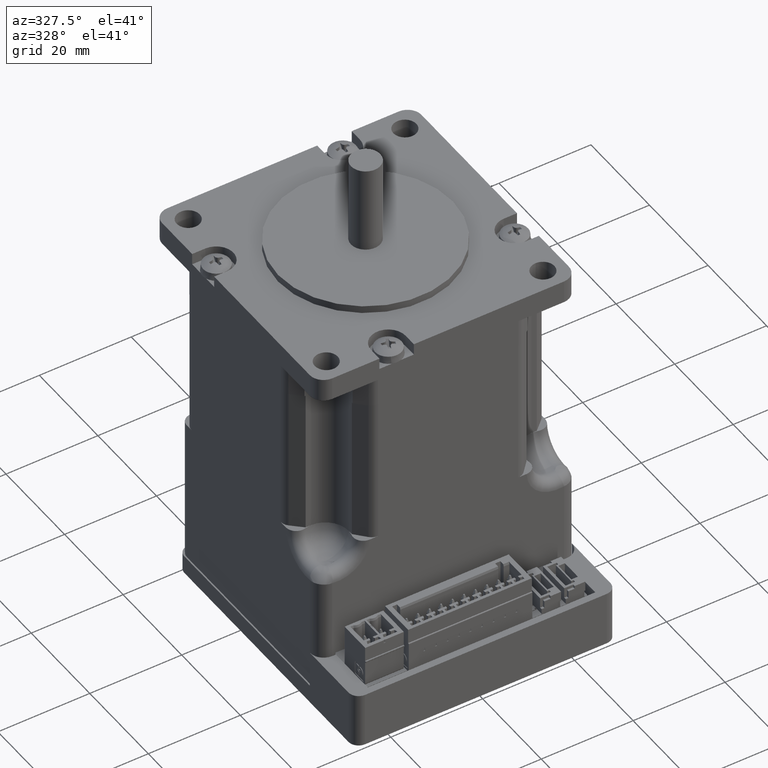
[diagram: clean part render]
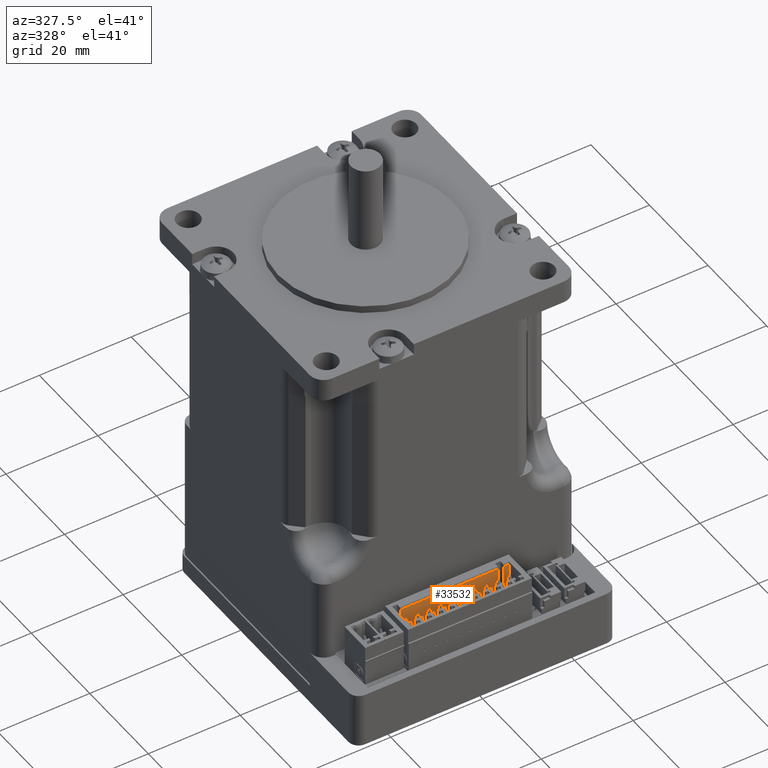
[diagram: same view with one face highlighted and labeled with its STEP entity id]
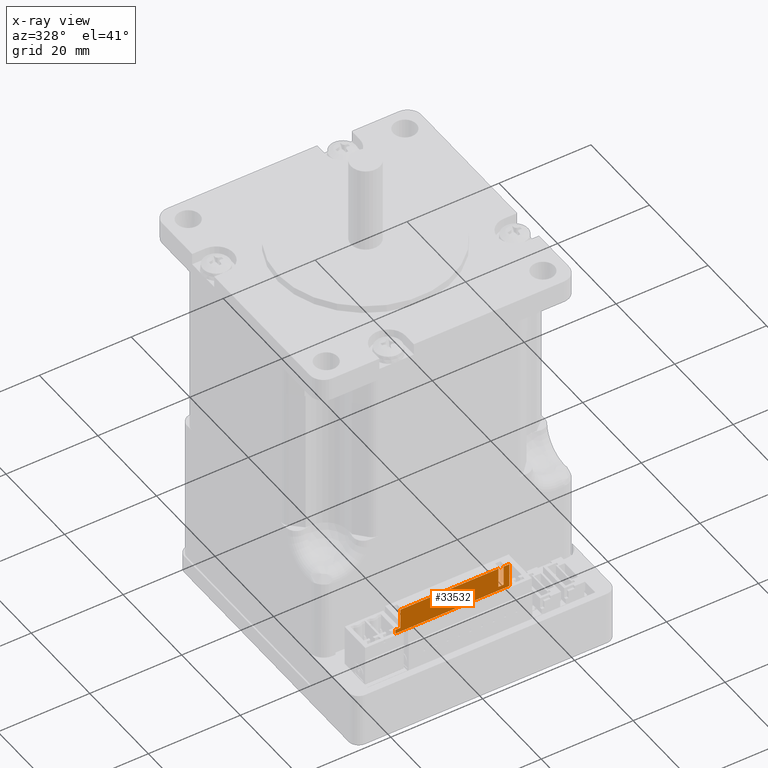
[diagram: x-ray of the same camera — body ghosted, the highlighted face saturated]
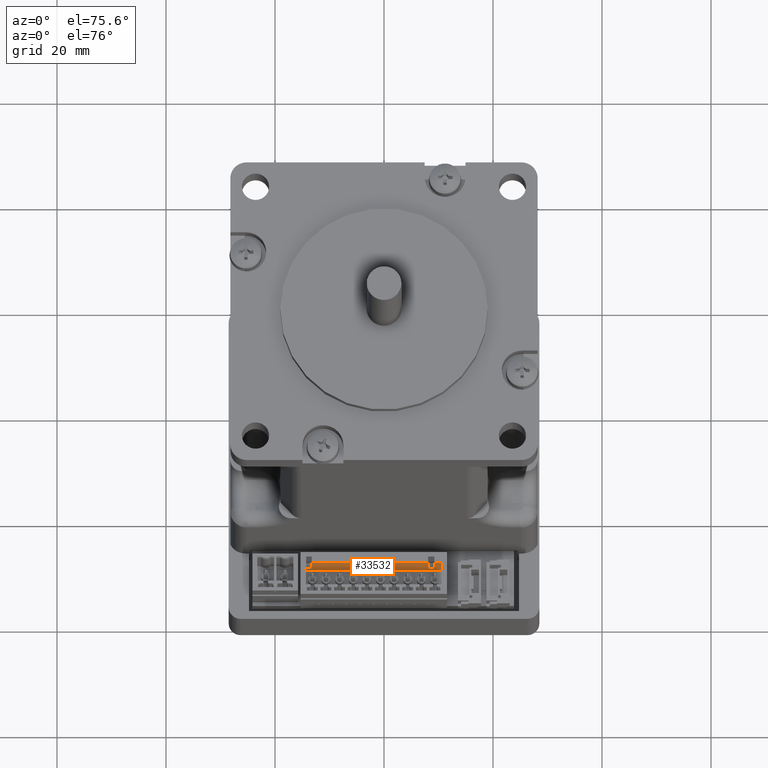
[diagram: same view with one face highlighted and labeled with its STEP entity id]
A machine part, auxiliary view. The second image highlights one B-rep face of the part: STEP entity #33532.
The next image is the same camera in x-ray: the body ghosted, the highlighted face saturated — about 0% of this face is hidden behind the body in this view.
A second angle (auxiliary view) of the same face is appended — the face is thin or edge-on in the first view.
In plain terms, the highlighted planar face has unit normal (0, -1, 0).
Its self-contained STEP definition (entity closure, byte-faithful):
#21942=CARTESIAN_POINT('',(10.500000000000846,-32.651401807939422,-52.899999999998343));
#21943=VERTEX_POINT('',#21942);
#21974=CARTESIAN_POINT('',(10.500000000000844,-32.651401807938981,-47.599999999999582));
#21975=VERTEX_POINT('',#21974);
#21982=CARTESIAN_POINT('',(10.500000000000844,-32.651401807943458,-47.599999999999589));
#21983=DIRECTION('',(0.0,0.0,-1.0));
#21984=VECTOR('',#21983,5.299999999998754);
#21985=LINE('',#21982,#21984);
#21986=EDGE_CURVE('',#21975,#21943,#21985,.T.);
#22931=CARTESIAN_POINT('',(-14.29999999999897,-32.651401807939422,-52.899999999998364));
#22932=VERTEX_POINT('',#22931);
#22933=CARTESIAN_POINT('',(10.500000000000846,-32.651401807939422,-52.899999999998357));
#22934=DIRECTION('',(-1.0,0.0,0.0));
#22935=VECTOR('',#22934,24.799999999999816);
#22936=LINE('',#22933,#22935);
#22937=EDGE_CURVE('',#21943,#22932,#22936,.T.);
#23452=CARTESIAN_POINT('',(9.250000000000924,-32.651401807938981,-47.599999999999589));
#23453=VERTEX_POINT('',#23452);
#23460=CARTESIAN_POINT('',(9.250000000000924,-32.651401807938981,-47.599999999999618));
#23461=DIRECTION('',(1.0,0.0,0.0));
#23462=VECTOR('',#23461,1.249999999999922);
#23463=LINE('',#23460,#23462);
#23464=EDGE_CURVE('',#23453,#21975,#23463,.T.);
#24758=CARTESIAN_POINT('',(8.100000000000925,-32.651401807938981,-47.599999999999611));
#24759=VERTEX_POINT('',#24758);
#24766=CARTESIAN_POINT('',(8.100000000000925,-32.651401807939386,-51.999999999998394));
#24767=VERTEX_POINT('',#24766);
#24768=CARTESIAN_POINT('',(8.100000000000925,-32.651401807943458,-47.599999999999611));
#24769=DIRECTION('',(0.0,0.0,-1.0));
#24770=VECTOR('',#24769,4.399999999998784);
#24771=LINE('',#24768,#24770);
#24772=EDGE_CURVE('',#24759,#24767,#24771,.T.);
#24862=CARTESIAN_POINT('',(9.250000000000924,-32.651401807939386,-51.999999999998394));
#24863=VERTEX_POINT('',#24862);
#24864=CARTESIAN_POINT('',(9.250000000000924,-32.651401807939386,-51.999999999998394));
#24865=DIRECTION('',(-1.0,0.0,0.0));
#24866=VECTOR('',#24865,1.149999999999999);
#24867=LINE('',#24864,#24866);
#24868=EDGE_CURVE('',#24863,#24767,#24867,.T.);
#24895=CARTESIAN_POINT('',(9.250000000000924,-32.651401807943458,-51.999999999998394));
#24896=DIRECTION('',(0.0,0.0,1.0));
#24897=VECTOR('',#24896,4.399999999998798);
#24898=LINE('',#24895,#24897);
#24899=EDGE_CURVE('',#24863,#23453,#24898,.T.);
#25196=CARTESIAN_POINT('',(-13.249999999999069,-32.651401807938981,-47.599999999999611));
#25197=VERTEX_POINT('',#25196);
#25204=CARTESIAN_POINT('',(8.100000000000925,-32.651401807938981,-47.599999999999618));
#25205=DIRECTION('',(-1.0,0.0,0.0));
#25206=VECTOR('',#25205,21.349999999999998);
#25207=LINE('',#25204,#25206);
#25208=EDGE_CURVE('',#24759,#25197,#25207,.T.);
#25758=CARTESIAN_POINT('',(-13.249999999999069,-32.651401807939386,-51.999999999999133));
#25759=VERTEX_POINT('',#25758);
#25760=CARTESIAN_POINT('',(-13.249999999999069,-32.651401807943458,-51.999999999999133));
#25761=DIRECTION('',(0.0,0.0,1.0));
#25762=VECTOR('',#25761,4.39999999999953);
#25763=LINE('',#25760,#25762);
#25764=EDGE_CURVE('',#25759,#25197,#25763,.T.);
#27073=CARTESIAN_POINT('',(-14.29999999999897,-32.651401807939386,-51.999999999999133));
#27074=VERTEX_POINT('',#27073);
#27075=CARTESIAN_POINT('',(-14.29999999999897,-32.651401807943458,-52.899999999998364));
#27076=DIRECTION('',(0.0,0.0,1.0));
#27077=VECTOR('',#27076,0.899999999999231);
#27078=LINE('',#27075,#27077);
#27079=EDGE_CURVE('',#22932,#27074,#27078,.T.);
#30659=CARTESIAN_POINT('',(-14.29999999999897,-32.651401807939386,-51.999999999999133));
#30660=DIRECTION('',(1.0,0.0,0.0));
#30661=VECTOR('',#30660,1.049999999999901);
#30662=LINE('',#30659,#30661);
#30663=EDGE_CURVE('',#27074,#25759,#30662,.T.);
#33515=CARTESIAN_POINT('',(-8.249999999999103,-32.651401807938939,-47.099999999998374));
#33516=DIRECTION('',(0.0,-1.0,0.0));
#33517=DIRECTION('',(1.0,0.0,0.0));
#33518=AXIS2_PLACEMENT_3D('',#33515,#33516,#33517);
#33519=PLANE('',#33518);
#33520=ORIENTED_EDGE('',*,*,#25208,.T.);
#33521=ORIENTED_EDGE('',*,*,#25764,.F.);
#33522=ORIENTED_EDGE('',*,*,#30663,.F.);
#33523=ORIENTED_EDGE('',*,*,#27079,.F.);
#33524=ORIENTED_EDGE('',*,*,#22937,.F.);
#33525=ORIENTED_EDGE('',*,*,#21986,.F.);
#33526=ORIENTED_EDGE('',*,*,#23464,.F.);
#33527=ORIENTED_EDGE('',*,*,#24899,.F.);
#33528=ORIENTED_EDGE('',*,*,#24868,.T.);
#33529=ORIENTED_EDGE('',*,*,#24772,.F.);
#33530=EDGE_LOOP('',(#33520,#33521,#33522,#33523,#33524,#33525,#33526,#33527,#33528,#33529));
#33531=FACE_OUTER_BOUND('',#33530,.T.);
#33532=ADVANCED_FACE('',(#33531),#33519,.T.);